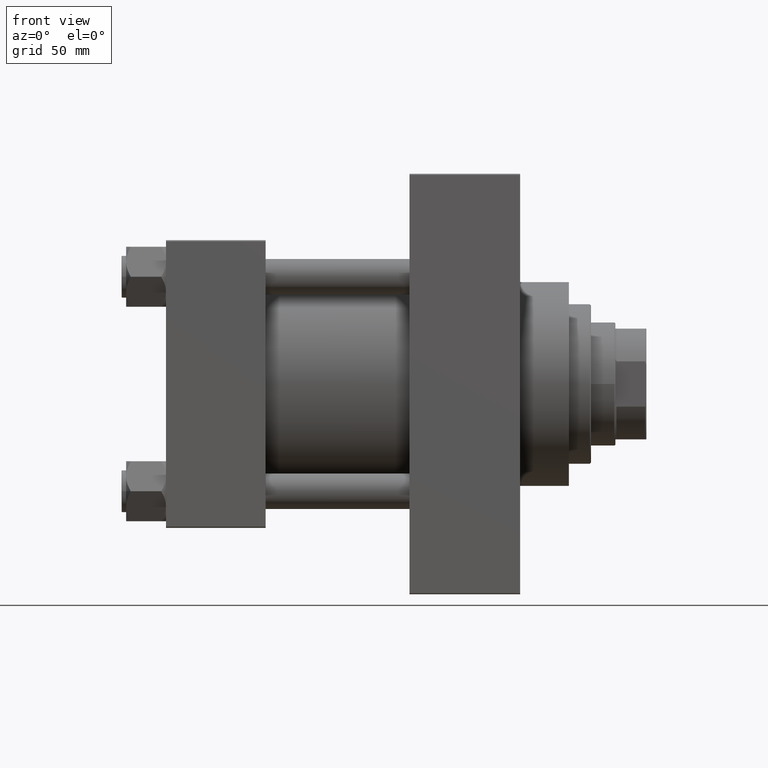
[diagram: clean part render]
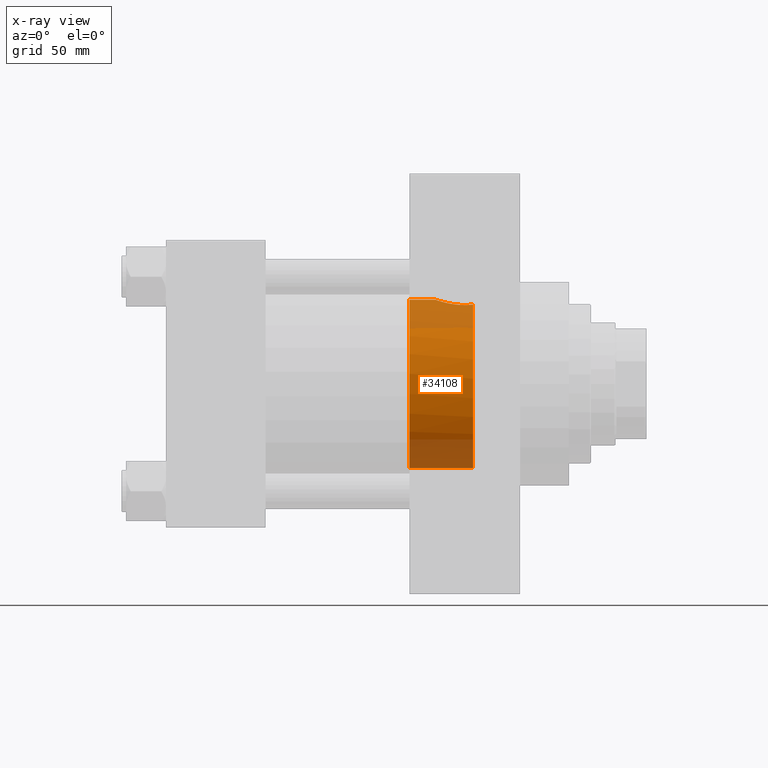
[diagram: x-ray — body ghosted, one internal face saturated and labeled with its STEP entity id]
A machine part, front view, then the same camera in x-ray: the body is ghosted and one INTERNAL B-rep face — a face not visible from any outside direction — is saturated and labeled: STEP entity #34108.
In plain terms, the highlighted cylindrical surface (partial cylindrical patch) has radius 38 mm, axis along (1, 0, 0).
Its self-contained STEP definition (entity closure, byte-faithful):
#420 = CARTESIAN_POINT ( 'NONE',  ( 131.6246063200817105, -12.79204261344251314, 35.78252008287735464 ) ) ;
#1131 = CARTESIAN_POINT ( 'NONE',  ( 124.5335653968728593, -8.091804117011164976, 37.13059057153026998 ) ) ;
#2103 = AXIS2_PLACEMENT_3D ( 'NONE', #25639, #18420, #15496 ) ;
#2883 = VECTOR ( 'NONE', #24173, 1000.000000000000000 ) ;
#4301 = CARTESIAN_POINT ( 'NONE',  ( -62.48023074035521773, 0.000000000000000000, 0.000000000000000000 ) ) ;
#4511 = CARTESIAN_POINT ( 'NONE',  ( 134.6814230918163844, -13.22630302104232491, 35.62395438639609324 ) ) ;
#4990 = CARTESIAN_POINT ( 'NONE',  ( 123.6733780949269033, -6.836262114151399949, 37.38252047338826145 ) ) ;
#5895 = EDGE_CURVE ( 'NONE', #28718, #36992, #39153, .T. ) ;
#6461 = CARTESIAN_POINT ( 'NONE',  ( 138.2468141908903192, -12.82540410897826177, 35.77055802578576049 ) ) ;
#7900 = CARTESIAN_POINT ( 'NONE',  ( 123.4152396125650881, -6.389315783911300173, 37.46185808708514031 ) ) ;
#11280 = CARTESIAN_POINT ( 'NONE',  ( 122.3777378405984280, -4.062146891642627544, 37.79554239058287379 ) ) ;
#11754 = CARTESIAN_POINT ( 'NONE',  ( 126.2661982700706886, -9.937219993078524993, 36.67946192170870745 ) ) ;
#12786 = EDGE_LOOP ( 'NONE', ( #28996, #37690, #13353, #23355, #38869 ) ) ;
#13095 = LINE ( 'NONE', #34810, #2883 ) ;
#13353 = ORIENTED_EDGE ( 'NONE', *, *, #14285, .F. ) ;
#13613 = DIRECTION ( 'NONE',  ( 0.000000000000000000, 0.000000000000000000, -1.000000000000000000 ) ) ;
#13951 = CARTESIAN_POINT ( 'NONE',  ( 136.2184681352997018, -13.17368919937494987, 35.64343931497819540 ) ) ;
#14285 = EDGE_CURVE ( 'NONE', #37708, #36992, #16010, .T. ) ;
#14799 = CARTESIAN_POINT ( 'NONE',  ( 121.7800000000000011, 4.670198152195978506E-15, 38.00000000000000000 ) ) ;
#15496 = DIRECTION ( 'NONE',  ( 0.000000000000000000, 0.000000000000000000, 1.000000000000000000 ) ) ;
#15884 = FACE_OUTER_BOUND ( 'NONE', #12786, .T. ) ;
#16010 = B_SPLINE_CURVE_WITH_KNOTS ( 'NONE', 3,
 ( #24793, #6461, #32264, #40245, #13951, #36628, #4511, #26005, #45304, #44836, #22610, #19708, #420, #23082, #30085, #37105, #22381, #29854, #11754, #44603, #38054, #1131, #26703, #4990, #7900, #37337, #11280, #19476, #40728, #30550, #37818, #37581 ),
 .UNSPECIFIED., .F., .F.,
 ( 4, 2, 2, 2, 2, 2, 2, 2, 2, 2, 2, 2, 2, 2, 2, 4 ),
 ( 0.01705422015311721870, 0.01859208991726081159, 0.02012995968140440448, 0.02166782944554800083, 0.02243676432761979728, 0.02320569920969159372, 0.02474356897383518661, 0.02628143873797877950, 0.02935717826626589588, 0.03089504803040945755, 0.03243291779455301921, 0.03397078755869657740, 0.03550865732284013560, 0.03858439685112724504, 0.04012226661527078936, 0.04166013637941433367 ),
 .UNSPECIFIED. ) ;
#16433 = VECTOR ( 'NONE', #38450, 1000.000000000000000 ) ;
#16630 = AXIS2_PLACEMENT_3D ( 'NONE', #4301, #38085, #19034 ) ;
#18420 = DIRECTION ( 'NONE',  ( -1.000000000000000000, 0.000000000000000000, -0.000000000000000000 ) ) ;
#19034 = DIRECTION ( 'NONE',  ( 0.000000000000000000, 0.000000000000000000, -1.000000000000000000 ) ) ;
#19476 = CARTESIAN_POINT ( 'NONE',  ( 122.0208682072191095, -2.563995466671129542, 37.91671060019312023 ) ) ;
#19508 = EDGE_CURVE ( 'NONE', #28147, #44353, #13095, .T. ) ;
#19708 = CARTESIAN_POINT ( 'NONE',  ( 132.1213861529210192, -12.91299555985393610, 35.73883275200964249 ) ) ;
#22381 = CARTESIAN_POINT ( 'NONE',  ( 127.8755652418720814, -11.18215487821176524, 36.32301804256496780 ) ) ;
#22610 = CARTESIAN_POINT ( 'NONE',  ( 132.8788164647796179, -13.05123934391905216, 35.68847932861488204 ) ) ;
#23082 = CARTESIAN_POINT ( 'NONE',  ( 130.6470234235081023, -12.49324744184130864, 35.88793482582379113 ) ) ;
#23088 = AXIS2_PLACEMENT_3D ( 'NONE', #42814, #31223, #13613 ) ;
#23355 = ORIENTED_EDGE ( 'NONE', *, *, #46899, .T. ) ;
#24173 = DIRECTION ( 'NONE',  ( 1.000000000000000000, -0.000000000000000000, -0.000000000000000000 ) ) ;
#24793 = CARTESIAN_POINT ( 'NONE',  ( 138.7399999999999807, -12.67993690836041409, 35.82204907595320265 ) ) ;
#25639 = CARTESIAN_POINT ( 'NONE',  ( 110.0000000000000142, 0.000000000000000000, 0.000000000000000000 ) ) ;
#26005 = CARTESIAN_POINT ( 'NONE',  ( 133.9061800254222305, -13.17721531947968572, 35.64212817518318133 ) ) ;
#26703 = CARTESIAN_POINT ( 'NONE',  ( 124.2318264884938088, -7.685914564966218165, 37.21712017253236127 ) ) ;
#28147 = VERTEX_POINT ( 'NONE', #35917 ) ;
#28718 = VERTEX_POINT ( 'NONE', #34853 ) ;
#28996 = ORIENTED_EDGE ( 'NONE', *, *, #40437, .T. ) ;
#29854 = CARTESIAN_POINT ( 'NONE',  ( 126.6581883585389789, -10.26839900491648194, 36.58771021444268712 ) ) ;
#30085 = CARTESIAN_POINT ( 'NONE',  ( 130.1651837322211520, -12.31495098171282976, 35.94981938685186407 ) ) ;
#30550 = CARTESIAN_POINT ( 'NONE',  ( 121.8096983583114223, -1.025007823581729705, 37.98963656081625828 ) ) ;
#31223 = DIRECTION ( 'NONE',  ( 1.000000000000000000, 0.000000000000000000, 0.000000000000000000 ) ) ;
#31656 = CARTESIAN_POINT ( 'NONE',  ( -62.48023074035521773, 4.653657836759941941E-15, 38.00000000000000000 ) ) ;
#32264 = CARTESIAN_POINT ( 'NONE',  ( 137.7396828457915205, -12.94319493727709691, 35.72789157605161847 ) ) ;
#33743 = CYLINDRICAL_SURFACE ( 'NONE', #16630, 38.00000000000000000 ) ;
#34108 = ADVANCED_FACE ( 'NONE', ( #15884 ), #33743, .F. ) ;
#34810 = CARTESIAN_POINT ( 'NONE',  ( -62.48023074035521773, 0.000000000000000000, -38.00000000000000000 ) ) ;
#34853 = CARTESIAN_POINT ( 'NONE',  ( 110.0000000000000142, 4.653657836759941941E-15, 38.00000000000000000 ) ) ;
#35917 = CARTESIAN_POINT ( 'NONE',  ( 110.0000000000000142, 0.000000000000000000, -38.00000000000000000 ) ) ;
#36628 = CARTESIAN_POINT ( 'NONE',  ( 135.1955284908290764, -13.22847384726381748, 35.62314322171076952 ) ) ;
#36992 = VERTEX_POINT ( 'NONE', #14799 ) ;
#37105 = CARTESIAN_POINT ( 'NONE',  ( 128.7505307718751908, -11.69499031497651131, 36.15822628461805976 ) ) ;
#37337 = CARTESIAN_POINT ( 'NONE',  ( 122.7266675305090047, -5.017990412168518155, 37.67859395355887386 ) ) ;
#37581 = CARTESIAN_POINT ( 'NONE',  ( 121.7800000000000011, 4.670198152195978506E-15, 38.00000000000000000 ) ) ;
#37690 = ORIENTED_EDGE ( 'NONE', *, *, #5895, .T. ) ;
#37708 = VERTEX_POINT ( 'NONE', #47211 ) ;
#37818 = CARTESIAN_POINT ( 'NONE',  ( 121.7800000000000153, -0.5124923440507846983, 38.00000000000000711 ) ) ;
#38054 = CARTESIAN_POINT ( 'NONE',  ( 125.1815366388300816, -8.866866661621774170, 36.95316935884812182 ) ) ;
#38085 = DIRECTION ( 'NONE',  ( 1.000000000000000000, -0.000000000000000000, -0.000000000000000000 ) ) ;
#38450 = DIRECTION ( 'NONE',  ( 1.000000000000000000, -0.000000000000000000, -0.000000000000000000 ) ) ;
#38869 = ORIENTED_EDGE ( 'NONE', *, *, #19508, .F. ) ;
#39153 = LINE ( 'NONE', #31656, #16433 ) ;
#39866 = CIRCLE ( 'NONE', #2103, 38.00000000000000000 ) ;
#40245 = CARTESIAN_POINT ( 'NONE',  ( 136.7273020000270947, -13.11672920664988773, 35.66454747468238651 ) ) ;
#40437 = EDGE_CURVE ( 'NONE', #28147, #28718, #39866, .T. ) ;
#40728 = CARTESIAN_POINT ( 'NONE',  ( 121.9297342754259290, -2.050085931408929696, 37.94812610307853618 ) ) ;
#42177 = CARTESIAN_POINT ( 'NONE',  ( 138.7400000000000091, 0.000000000000000000, -38.00000000000000000 ) ) ;
#42814 = CARTESIAN_POINT ( 'NONE',  ( 138.7400000000000091, 0.000000000000000000, 0.000000000000000000 ) ) ;
#43919 = CIRCLE ( 'NONE', #23088, 38.00000000000000000 ) ;
#44353 = VERTEX_POINT ( 'NONE', #42177 ) ;
#44603 = CARTESIAN_POINT ( 'NONE',  ( 125.5277665390035793, -9.236039579220982176, 36.86226852688235311 ) ) ;
#44836 = CARTESIAN_POINT ( 'NONE',  ( 133.1333413548220506, -13.09010442784178352, 35.67422447380825190 ) ) ;
#45304 = CARTESIAN_POINT ( 'NONE',  ( 133.6465934105188751, -13.15308097112496455, 35.65105309393389632 ) ) ;
#46899 = EDGE_CURVE ( 'NONE', #37708, #44353, #43919, .T. ) ;
#47211 = CARTESIAN_POINT ( 'NONE',  ( 138.7399999999999807, -12.67993690836041409, 35.82204907595320265 ) ) ;